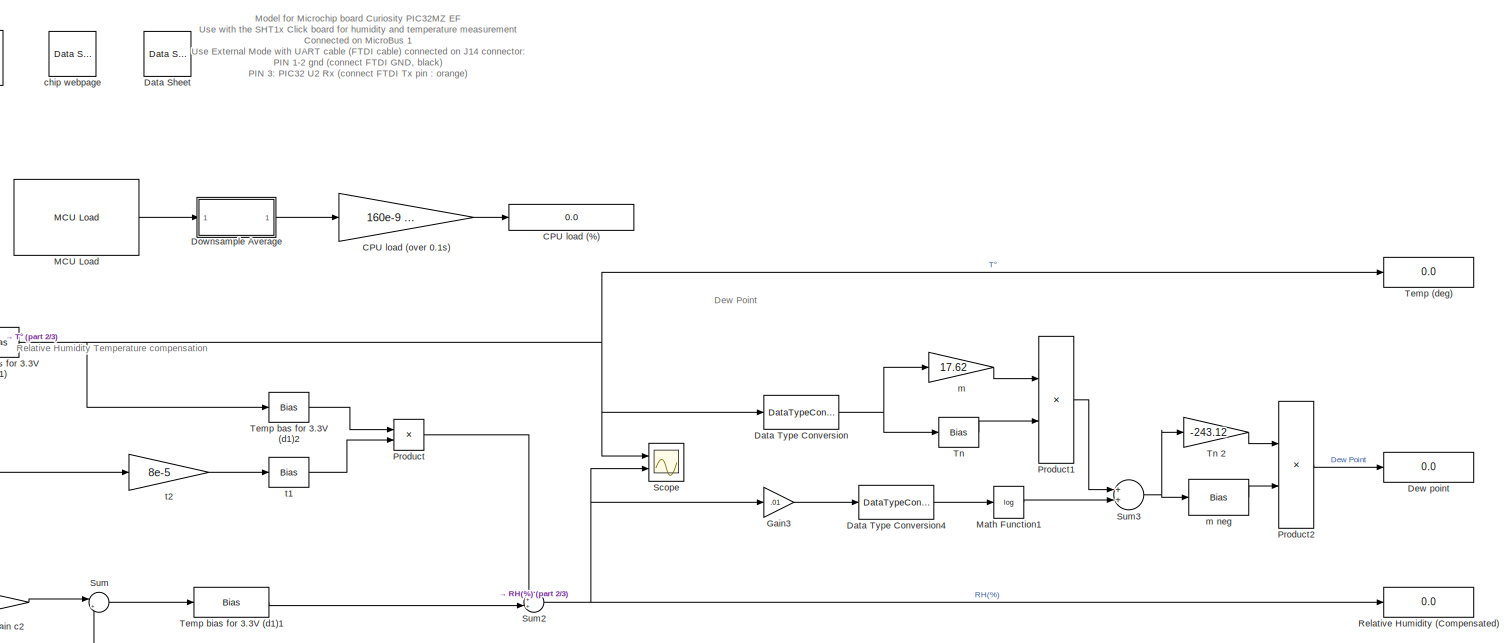
[diagram: root canvas - part 1/3, central region]
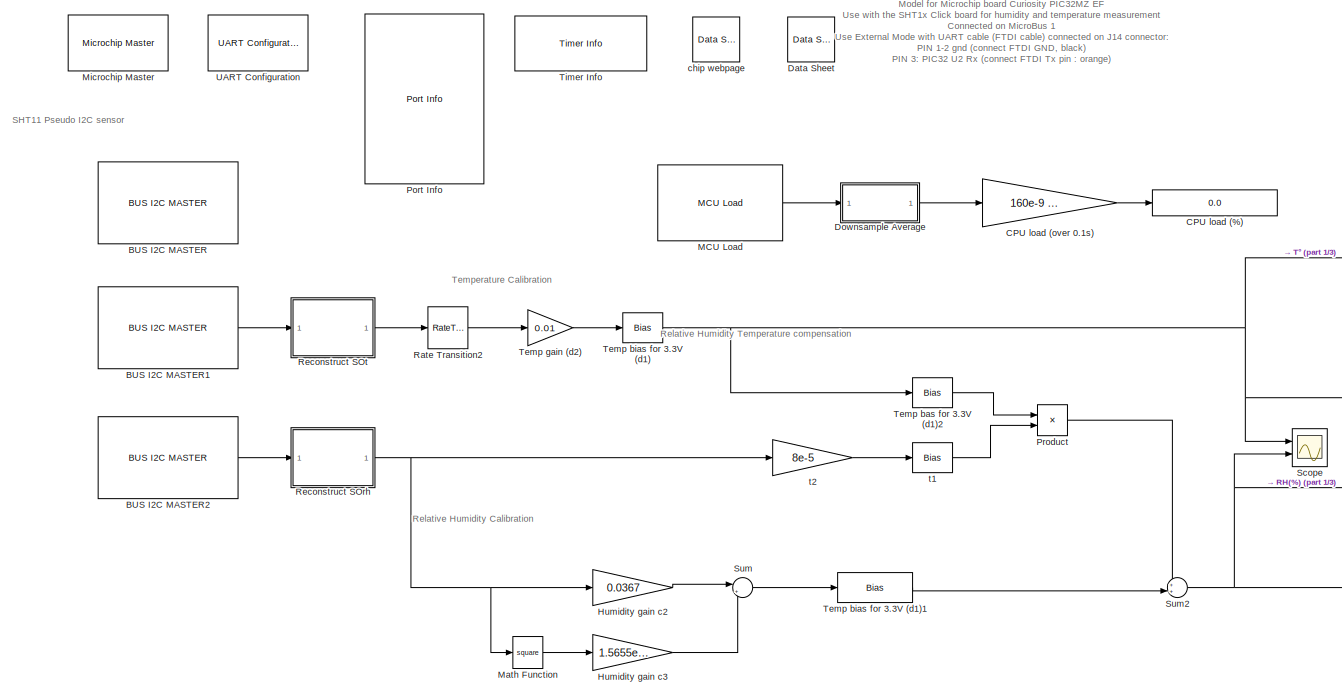
[diagram: root canvas - part 2/3, middle left region]
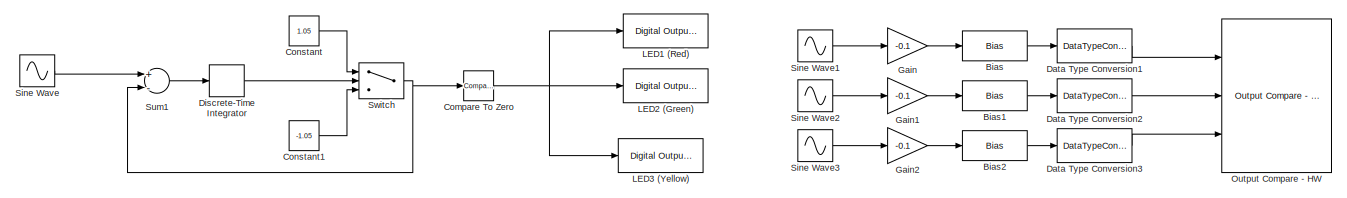
[diagram: root canvas - part 3/3, bottom center region]
MODEL slx_f7ddeb926c9c
KIND model
CONFIG AbsTol = auto
CONFIG EnableMultiTasking = off
CONFIG FixedStep = 0.01
CONFIG MaxStep = auto
CONFIG MinStep = auto
CONFIG RelTol = 1e-3
CONFIG SampleTimeConstraint = Unconstrained
CONFIG Solver = FixedStepDiscrete
CONFIG SolverName = FixedStepDiscrete
CONFIG StartTime = 0.0
CONFIG StopTime = inf
BLOCK [Reference] BUS I2C MASTER  REF=MCHP_Blockset/BUS I2C/BUS I2C
MASTER
  Ports = []
  SourceBlock = MCHP_Blockset/BUS I2C/BUS I2C\nMASTER
  SourceType = I2C Driver
BLOCK [Reference] BUS I2C MASTER1  REF=MCHP_Blockset/BUS I2C/BUS I2C
MASTER
  Ports = [0, 1]
  SourceBlock = MCHP_Blockset/BUS I2C/BUS I2C\nMASTER
  SourceType = I2C Driver
BLOCK [Reference] BUS I2C MASTER2  REF=MCHP_Blockset/BUS I2C/BUS I2C
MASTER
  Ports = [0, 1]
  SourceBlock = MCHP_Blockset/BUS I2C/BUS I2C\nMASTER
  SourceType = I2C Driver
BLOCK [Bias] Bias
  Bias = OC3max
  SaturateOnIntegerOverflow = off
BLOCK [Bias] Bias1
  Bias = OC3max
  SaturateOnIntegerOverflow = off
BLOCK [Bias] Bias2
  Bias = OC3max
  SaturateOnIntegerOverflow = off
BLOCK [Display] CPU load (%)
  Decimation = 1
  Format = long
  Ports = [1]
BLOCK [Gain] CPU load (over 0.1s)
  Gain = 160e-9 /0.01 * 100
  OutDataTypeStr = double
  ParamDataTypeStr = Inherit: Inherit via internal rule
  SaturateOnIntegerOverflow = off
BLOCK [Reference] Compare To Zero  REF=simulink/Logic and Bit
Operations/Compare
To Zero
  Ports = [1, 1]
  SourceBlock = simulink/Logic and Bit\nOperations/Compare\nTo Zero
  SourceType = Compare To Zero
BLOCK [Constant] Constant
  Value = 1.05
BLOCK [Constant] Constant1
  Value = -1.05
BLOCK [Reference] Data Sheet  REF=MCHP_Blockset/System Info/Data Sheet
  AttributesFormatString = %<cpy_MCHP_Id>
  Ports = []
  SourceBlock = MCHP_Blockset/System Info/Data Sheet
BLOCK [DataTypeConversion] Data Type Conversion
  OutDataTypeStr = double
  RndMeth = Floor
  SaturateOnIntegerOverflow = off
BLOCK [DataTypeConversion] Data Type Conversion1
  RndMeth = Floor
  SaturateOnIntegerOverflow = off
BLOCK [DataTypeConversion] Data Type Conversion2
  RndMeth = Floor
  SaturateOnIntegerOverflow = off
BLOCK [DataTypeConversion] Data Type Conversion3
  RndMeth = Floor
  SaturateOnIntegerOverflow = off
BLOCK [DataTypeConversion] Data Type Conversion4
  OutDataTypeStr = double
  RndMeth = Floor
  SaturateOnIntegerOverflow = off
BLOCK [Display] Dew point
  Decimation = 1
  Format = long
  Ports = [1]
BLOCK [DiscreteIntegrator] Discrete-Time Integrator
  ICPrevOutput = DiscIntNeverNeededParam
  ICPrevScaledInput = DiscIntNeverNeededParam
  InitialConditionSetting = State (most efficient)
  Ports = [1, 1]
  SampleTime = -1
  gainval = 1
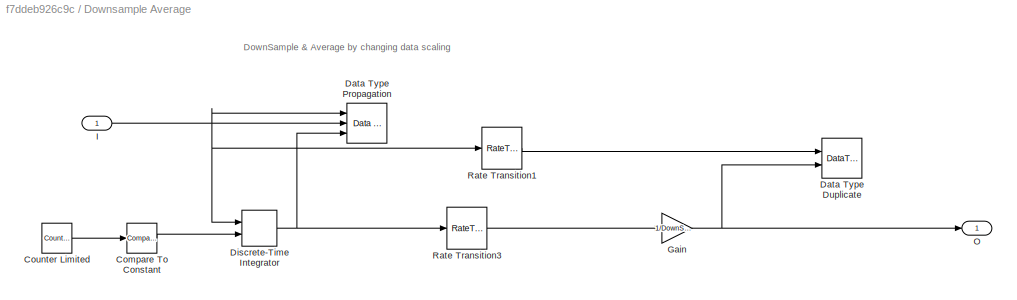
BLOCK [SubSystem] Downsample Average
  Ports = [1, 1]
  RequestExecContextInheritance = off
  Variant = off
BLOCK [Reference] Downsample Average/Compare To Constant  REF=simulink/Logic and Bit
Operations/Compare
To Constant
  Ports = [1, 1]
  SourceBlock = simulink/Logic and Bit\nOperations/Compare\nTo Constant
  SourceType = Compare To Constant
BLOCK [Reference] Downsample Average/Counter Limited  REF=simulink/Sources/Counter
Limited
  Ports = [0, 1]
  SourceBlock = simulink/Sources/Counter\nLimited
  SourceType = Counter Limited
BLOCK [DataTypeDuplicate] Downsample Average/Data Type Duplicate
  Ports = [2]
BLOCK [Reference] Downsample Average/Data Type Propagation  REF=simulink/Signal
Attributes/Data Type
Propagation
  Ports = [3]
  SourceBlock = simulink/Signal\nAttributes/Data Type\nPropagation
  SourceType = Data Type Propagation
BLOCK [DiscreteIntegrator] Downsample Average/Discrete-Time Integrator
  ExternalReset = sampled level
  ICPrevOutput = DiscIntNeverNeededParam
  ICPrevScaledInput = DiscIntNeverNeededParam
  InitialConditionSetting = State (most efficient)
  IntegratorMethod = Accumulation: Backward Euler
  OutDataTypeStr = Inherit: Inherit via back propagation
  Ports = [2, 1]
  SampleTime = -1
  gainval = 1
BLOCK [Gain] Downsample Average/Gain
  Gain = 1/DownSample
  OutDataTypeStr = Inherit: Inherit via back propagation
  ParamDataTypeStr = Inherit: Inherit via internal rule
  SaturateOnIntegerOverflow = off
BLOCK [Inport] Downsample Average/I
  IconDisplay = Port number
BLOCK [Outport] Downsample Average/O
  IconDisplay = Port number
BLOCK [RateTransition] Downsample Average/Rate Transition1
  Deterministic = off
  OutPortSampleTime = [InputSampleTime * DownSample]
BLOCK [RateTransition] Downsample Average/Rate Transition3
  OutPortSampleTime = [InputSampleTime * DownSample]
BLOCK [Gain] Gain
  Gain = -0.1
  OutDataTypeStr = Inherit: Inherit via internal rule
  ParamDataTypeStr = Inherit: Inherit via internal rule
  SaturateOnIntegerOverflow = off
BLOCK [Gain] Gain1
  Gain = -0.1
  OutDataTypeStr = Inherit: Inherit via internal rule
  ParamDataTypeStr = Inherit: Inherit via internal rule
  SaturateOnIntegerOverflow = off
BLOCK [Gain] Gain2
  Gain = -0.1
  OutDataTypeStr = Inherit: Inherit via internal rule
  ParamDataTypeStr = Inherit: Inherit via internal rule
  SaturateOnIntegerOverflow = off
BLOCK [Gain] Gain3
  Gain = .01
  OutDataTypeStr = fixdt(1,32)
  OutMax = [1]
  OutMin = [0]
  ParamDataTypeStr = Inherit: Inherit via internal rule
  SaturateOnIntegerOverflow = off
BLOCK [Gain] Humidity gain c2
  Gain = 0.0367
  OutDataTypeStr = fixdt(1,32)
  OutMax = 2^16*0.0367
  ParamDataTypeStr = Inherit: Inherit via internal rule
  SaturateOnIntegerOverflow = off
BLOCK [Gain] Humidity gain c3
  Gain = 1.5655e-6
  OutDataTypeStr = fixdt(0,32)
  OutMax = 2^32*1.5655e-6
  ParamDataTypeStr = Inherit: Inherit via internal rule
  SaturateOnIntegerOverflow = off
BLOCK [Reference] LED1 (Red)  REF=MCHP_Blockset/Digital IO/Digital Output
Write
  Ports = [1]
  SourceBlock = MCHP_Blockset/Digital IO/Digital Output\nWrite
  SourceType = Output driver for Digital Output Pins
BLOCK [Reference] LED2 (Green)  REF=MCHP_Blockset/Digital IO/Digital Output
Write
  Ports = [1]
  SourceBlock = MCHP_Blockset/Digital IO/Digital Output\nWrite
  SourceType = Output driver for Digital Output Pins
BLOCK [Reference] LED3 (Yellow)  REF=MCHP_Blockset/Digital IO/Digital Output
Write
  Ports = [1]
  SourceBlock = MCHP_Blockset/Digital IO/Digital Output\nWrite
  SourceType = Output driver for Digital Output Pins
BLOCK [Reference] MCU Load  REF=MCHP_Blockset/Profiling/MCU Load
  Ports = [0, 1]
  SourceBlock = MCHP_Blockset/Profiling/MCU Load
  SourceType = MCU Load (Profile execution time)
BLOCK [Math] Math Function
  Operator = square
  OutDataTypeStr = Inherit: Inherit via internal rule
  Ports = [1, 1]
  SaturateOnIntegerOverflow = off
BLOCK [Math] Math Function1
  Operator = log
  OutDataTypeStr = Inherit: Inherit via internal rule
  Ports = [1, 1]
  SaturateOnIntegerOverflow = off
BLOCK [Reference] Microchip Master  REF=MCHP_Blockset/System Configuration/Microchip Master
  Ports = []
  Priority = 1
  SourceBlock = MCHP_Blockset/System Configuration/Microchip Master
BLOCK [Reference] Output Compare - HW  REF=MCHP_Blockset/Pulse Input//Output/Output Compare - HW
  Ports = [3]
  SourceBlock = MCHP_Blockset/Pulse Input//Output/Output Compare - HW
  SourceType = Input driver for Output Compare Peripheral Hardware
  UserDataPersistent = on
BLOCK [Reference] Port Info  REF=MCHP_Blockset/System Info/Port Info
  Ports = []
  SourceBlock = MCHP_Blockset/System Info/Port Info
BLOCK [Product] Product
  InputSameDT = off
  OutDataTypeStr = Inherit: Inherit via internal rule
  Ports = [2, 1]
  RndMeth = Floor
  SaturateOnIntegerOverflow = off
BLOCK [Product] Product1
  InputSameDT = off
  Inputs = */
  OutDataTypeStr = Inherit: Inherit via internal rule
  Ports = [2, 1]
  RndMeth = Floor
  SaturateOnIntegerOverflow = off
BLOCK [Product] Product2
  InputSameDT = off
  Inputs = */
  OutDataTypeStr = Inherit: Inherit via internal rule
  Ports = [2, 1]
  RndMeth = Floor
  SaturateOnIntegerOverflow = off
BLOCK [RateTransition] Rate Transition2
  Integrity = off
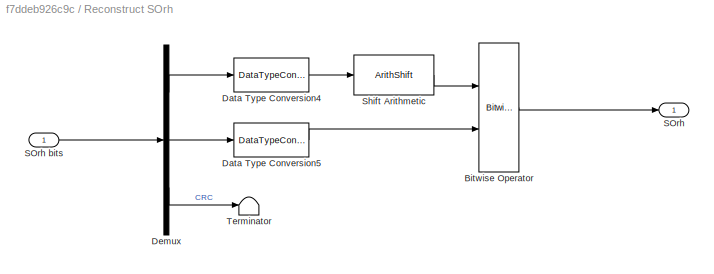
BLOCK [SubSystem] Reconstruct SOrh
  Ports = [1, 1]
  RequestExecContextInheritance = off
  Variant = off
BLOCK [Reference] Reconstruct SOrh/Bitwise Operator  REF=simulink/Logic and Bit
Operations/Bitwise
Operator
  Ports = [2, 1]
  SourceBlock = simulink/Logic and Bit\nOperations/Bitwise\nOperator
  SourceType = Bitwise Operator
BLOCK [DataTypeConversion] Reconstruct SOrh/Data Type Conversion4
  ConvertRealWorld = Stored Integer (SI)
  OutDataTypeStr = uint16
  RndMeth = Floor
  SaturateOnIntegerOverflow = off
BLOCK [DataTypeConversion] Reconstruct SOrh/Data Type Conversion5
  ConvertRealWorld = Stored Integer (SI)
  OutDataTypeStr = uint16
  RndMeth = Floor
  SaturateOnIntegerOverflow = off
BLOCK [Demux] Reconstruct SOrh/Demux
  DisplayOption = bar
  Outputs = 3
  Ports = [1, 3]
BLOCK [Outport] Reconstruct SOrh/SOrh
  IconDisplay = Port number
BLOCK [Inport] Reconstruct SOrh/SOrh bits
  IconDisplay = Port number
BLOCK [ArithShift] Reconstruct SOrh/Shift Arithmetic
  BitShiftDirection = Left
  BitShiftNumber = 8
  InputPortMap = u0
  Ports = [1, 1]
BLOCK [Terminator] Reconstruct SOrh/Terminator
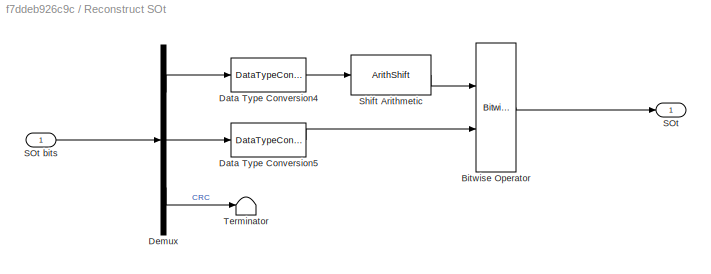
BLOCK [SubSystem] Reconstruct SOt
  Ports = [1, 1]
  RequestExecContextInheritance = off
  Variant = off
BLOCK [Reference] Reconstruct SOt/Bitwise Operator  REF=simulink/Logic and Bit
Operations/Bitwise
Operator
  Ports = [2, 1]
  SourceBlock = simulink/Logic and Bit\nOperations/Bitwise\nOperator
  SourceType = Bitwise Operator
BLOCK [DataTypeConversion] Reconstruct SOt/Data Type Conversion4
  ConvertRealWorld = Stored Integer (SI)
  OutDataTypeStr = uint16
  RndMeth = Floor
  SaturateOnIntegerOverflow = off
BLOCK [DataTypeConversion] Reconstruct SOt/Data Type Conversion5
  ConvertRealWorld = Stored Integer (SI)
  OutDataTypeStr = uint16
  RndMeth = Floor
  SaturateOnIntegerOverflow = off
BLOCK [Demux] Reconstruct SOt/Demux
  DisplayOption = bar
  Outputs = 3
  Ports = [1, 3]
BLOCK [Outport] Reconstruct SOt/SOt
  IconDisplay = Port number
BLOCK [Inport] Reconstruct SOt/SOt bits
  IconDisplay = Port number
BLOCK [ArithShift] Reconstruct SOt/Shift Arithmetic
  BitShiftDirection = Left
  BitShiftNumber = 8
  InputPortMap = u0
  Ports = [1, 1]
BLOCK [Terminator] Reconstruct SOt/Terminator
BLOCK [Display] Relative Humidity (Compensated)
  Decimation = 1
  Format = long
  Ports = [1]
BLOCK [Scope] Scope
  NumInputPorts = 2
  Ports = [2]
  ScopeSpecificationString = Simulink.scopes.TimeScopeBlockCfg('CurrentConfiguration', extmgr.ConfigurationSet(extmgr.Configuration('Core','General UI',true),extmgr.Configuration('Core','Source UI',true),extmgr.Configuration('Sources','WiredSimulink',true),extmgr.Configuration('Visuals','Time Domain',true,'SerializedDisplays',{struct('MinYLimReal','21.54688','MaxYLimReal','22.64063','YLabelReal','','MinYLimMag','21.54688','Ma...<+2221ch>
BLOCK [Sin] Sine Wave
  Frequency = 2*pi*1/5
  Ports = [0, 1]
  SampleTime = .01
BLOCK [Sin] Sine Wave1
  Amplitude = OC3max/2
  Bias = OC3max/2
  Frequency = 2*pi*1/5
  Ports = [0, 1]
  SampleTime = .01
BLOCK [Sin] Sine Wave2
  Amplitude = OC4max/2
  Bias = OC4max/2
  Frequency = 2*pi*1/5
  Phase = 2*pi/3
  Ports = [0, 1]
  SampleTime = .01
BLOCK [Sin] Sine Wave3
  Amplitude = OC5max/2
  Bias = OC5max/2
  Frequency = 2*pi*1/5
  Phase = 4*pi/3
  Ports = [0, 1]
  SampleTime = .01
BLOCK [Sum] Sum
  IconShape = round
  InputSameDT = off
  Inputs = |+-
  OutDataTypeStr = Inherit: Inherit via internal rule
  Ports = [2, 1]
  SaturateOnIntegerOverflow = off
BLOCK [Sum] Sum1
  InputSameDT = off
  Inputs = +-
  OutDataTypeStr = Inherit: Inherit via internal rule
  Ports = [2, 1]
  SaturateOnIntegerOverflow = off
BLOCK [Sum] Sum2
  IconShape = round
  InputSameDT = off
  Inputs = ++|
  OutDataTypeStr = Inherit: Inherit via internal rule
  Ports = [2, 1]
  SaturateOnIntegerOverflow = off
BLOCK [Sum] Sum3
  InputSameDT = off
  OutDataTypeStr = Inherit: Inherit via internal rule
  Ports = [2, 1]
  SaturateOnIntegerOverflow = off
BLOCK [Switch] Switch
  Criteria = u2 > Threshold
  InputSameDT = off
  SaturateOnIntegerOverflow = off
BLOCK [Display] Temp (deg)
  Decimation = 1
  Format = long
  Ports = [1]
BLOCK [Bias] Temp bas for 3.3V (d1)2
  Bias = -25
  SaturateOnIntegerOverflow = off
BLOCK [Bias] Temp bias for 3.3V (d1)
  Bias = -39.7
  SaturateOnIntegerOverflow = off
BLOCK [Bias] Temp bias for 3.3V (d1)1
  Bias = -2.0468
  SaturateOnIntegerOverflow = off
BLOCK [Gain] Temp gain (d2)
  Gain = 0.01
  OutDataTypeStr = fixdt(1,16)
  OutMax = 655.35
  OutMin = 0
  ParamDataTypeStr = Inherit: Inherit via internal rule
  SaturateOnIntegerOverflow = off
BLOCK [Reference] Timer Info  REF=MCHP_Blockset/System Info/Timer Info
  Ports = []
  SourceBlock = MCHP_Blockset/System Info/Timer Info
BLOCK [Bias] Tn
  Bias = 243.12
  SaturateOnIntegerOverflow = off
BLOCK [Gain] Tn 2
  Gain = -243.12
  OutDataTypeStr = Inherit: Inherit via internal rule
  ParamDataTypeStr = Inherit: Inherit via internal rule
  SaturateOnIntegerOverflow = off
BLOCK [Reference] UART Configuration  REF=MCHP_Blockset/BUS UART/UART Configuration
  Ports = []
  SourceBlock = MCHP_Blockset/BUS UART/UART Configuration
  SourceType = Configuration for UART peripheral
BLOCK [Reference] chip webpage  REF=MCHP_Blockset/System Info/Data Sheet
  AttributesFormatString = %<cpy_MCHP_Id>
  Ports = []
  SourceBlock = MCHP_Blockset/System Info/Data Sheet
BLOCK [Gain] m
  Gain = 17.62
  OutDataTypeStr = Inherit: Inherit via internal rule
  ParamDataTypeStr = Inherit: Inherit via internal rule
  SaturateOnIntegerOverflow = off
BLOCK [Bias] m neg
  Bias = -17.62
  SaturateOnIntegerOverflow = off
BLOCK [Bias] t1
  Bias = 0.01
  SaturateOnIntegerOverflow = off
BLOCK [Gain] t2
  Gain = 8e-5
  OutDataTypeStr = fixdt(0,16)
  OutMax = 2^16*8e-5
  ParamDataTypeStr = Inherit: Inherit via internal rule
  SaturateOnIntegerOverflow = off
ANNOTATION (root): Model for Microchip board Curiosity PIC32MZ EF Use with the SHT1x Click board for humidity and temperature measurement Connected on MicroBus 1 Use External Mode with UART cable (FTDI cable) connected on J14 connector: PIN 1-2 gnd (connect FTDI GND, black) PIN 3: PIC32 U2 Rx (connect FTDI Tx pin : orange) PIN 5: PIC32 U2 Tx (connect FTDI Rx pin : yellow)
ANNOTATION (root): Dew Point
ANNOTATION (root): Relative Humidity Calibration
ANNOTATION (root): Relative Humidity Temperature compensation
ANNOTATION (root): SHT11 Pseudo I2C sensor
ANNOTATION (root): Temperature Calibration
ANNOTATION Downsample Average: DownSample & Average by changing data scaling
LINE BUS I2C MASTER1:1 -> Reconstruct SOt:1
LINE BUS I2C MASTER2:1 -> Reconstruct SOrh:1
LINE Bias1:1 -> Data Type Conversion2:1
LINE Bias2:1 -> Data Type Conversion3:1
LINE Bias:1 -> Data Type Conversion1:1
LINE CPU load (over 0.1s):1 -> CPU load (%):1
NET Compare To Zero:1 -> LED1 (Red):1, LED2 (Green):1, LED3 (Yellow):1
LINE Constant1:1 -> Switch:3
LINE Constant:1 -> Switch:1
LINE Data Type Conversion1:1 -> Output Compare - HW:1
LINE Data Type Conversion2:1 -> Output Compare - HW:2
LINE Data Type Conversion3:1 -> Output Compare - HW:3
LINE Data Type Conversion4:1 -> Math Function1:1
NET Data Type Conversion:1 -> Tn:1, m:1
LINE Discrete-Time Integrator:1 -> Switch:2
LINE Downsample Average/Compare To Constant:1 -> Downsample Average/Discrete-Time Integrator:2
LINE Downsample Average/Counter Limited:1 -> Downsample Average/Compare To Constant:1
NET Downsample Average/Discrete-Time Integrator:1 -> Downsample Average/Data Type Propagation:3, Downsample Average/Rate Transition3:1
NET Downsample Average/Gain:1 -> Downsample Average/Data Type Duplicate:2, Downsample Average/O:1
NET Downsample Average/I:1 -> Downsample Average/Data Type Propagation:1, Downsample Average/Data Type Propagation:2, Downsample Average/Discrete-Time Integrator:1, Downsample Average/Rate Transition1:1
LINE Downsample Average/Rate Transition1:1 -> Downsample Average/Data Type Duplicate:1
LINE Downsample Average/Rate Transition3:1 -> Downsample Average/Gain:1
LINE Downsample Average:1 -> CPU load (over 0.1s):1
LINE Gain1:1 -> Bias1:1
LINE Gain2:1 -> Bias2:1
LINE Gain3:1 -> Data Type Conversion4:1
LINE Gain:1 -> Bias:1
LINE Humidity gain c2:1 -> Sum:1
LINE Humidity gain c3:1 -> Sum:2
LINE MCU Load:1 -> Downsample Average:1
LINE Math Function1:1 -> Sum3:2
LINE Math Function:1 -> Humidity gain c3:1
LINE Product1:1 -> Sum3:1
LINE Product2:1 -> Dew point:1
LINE Product:1 -> Sum2:1
LINE Rate Transition2:1 -> Temp gain (d2):1
LINE Reconstruct SOrh/Bitwise Operator:1 -> Reconstruct SOrh/SOrh:1
LINE Reconstruct SOrh/Data Type Conversion4:1 -> Reconstruct SOrh/Shift Arithmetic:1
LINE Reconstruct SOrh/Data Type Conversion5:1 -> Reconstruct SOrh/Bitwise Operator:2
LINE Reconstruct SOrh/Demux:1 -> Reconstruct SOrh/Data Type Conversion4:1
LINE Reconstruct SOrh/Demux:2 -> Reconstruct SOrh/Data Type Conversion5:1
LINE Reconstruct SOrh/Demux:3 -> Reconstruct SOrh/Terminator:1
LINE Reconstruct SOrh/SOrh bits:1 -> Reconstruct SOrh/Demux:1
LINE Reconstruct SOrh/Shift Arithmetic:1 -> Reconstruct SOrh/Bitwise Operator:1
NET Reconstruct SOrh:1 -> Humidity gain c2:1, Math Function:1, t2:1
LINE Reconstruct SOt/Bitwise Operator:1 -> Reconstruct SOt/SOt:1
LINE Reconstruct SOt/Data Type Conversion4:1 -> Reconstruct SOt/Shift Arithmetic:1
LINE Reconstruct SOt/Data Type Conversion5:1 -> Reconstruct SOt/Bitwise Operator:2
LINE Reconstruct SOt/Demux:1 -> Reconstruct SOt/Data Type Conversion4:1
LINE Reconstruct SOt/Demux:2 -> Reconstruct SOt/Data Type Conversion5:1
LINE Reconstruct SOt/Demux:3 -> Reconstruct SOt/Terminator:1
LINE Reconstruct SOt/SOt bits:1 -> Reconstruct SOt/Demux:1
LINE Reconstruct SOt/Shift Arithmetic:1 -> Reconstruct SOt/Bitwise Operator:1
LINE Reconstruct SOt:1 -> Rate Transition2:1
LINE Sine Wave1:1 -> Gain:1
LINE Sine Wave2:1 -> Gain1:1
LINE Sine Wave3:1 -> Gain2:1
LINE Sine Wave:1 -> Sum1:1
LINE Sum1:1 -> Discrete-Time Integrator:1
NET Sum2:1 -> Gain3:1, Relative Humidity (Compensated):1, Scope:2
NET Sum3:1 -> Tn 2:1, m neg:1
LINE Sum:1 -> Temp bias for 3.3V (d1)1:1
NET Switch:1 -> Compare To Zero:1, Sum1:2
LINE Temp bas for 3.3V (d1)2:1 -> Product:1
LINE Temp bias for 3.3V (d1)1:1 -> Sum2:2
NET Temp bias for 3.3V (d1):1 -> Data Type Conversion:1, Scope:1, Temp (deg):1, Temp bas for 3.3V (d1)2:1
LINE Temp gain (d2):1 -> Temp bias for 3.3V (d1):1
LINE Tn 2:1 -> Product2:1
LINE Tn:1 -> Product1:2
LINE m neg:1 -> Product2:2
LINE m:1 -> Product1:1
LINE t1:1 -> Product:2
LINE t2:1 -> t1:1
note: NET lines group one-source signal fan-out (src -> all destinations, sorted); 1:1 wires keep LINE
